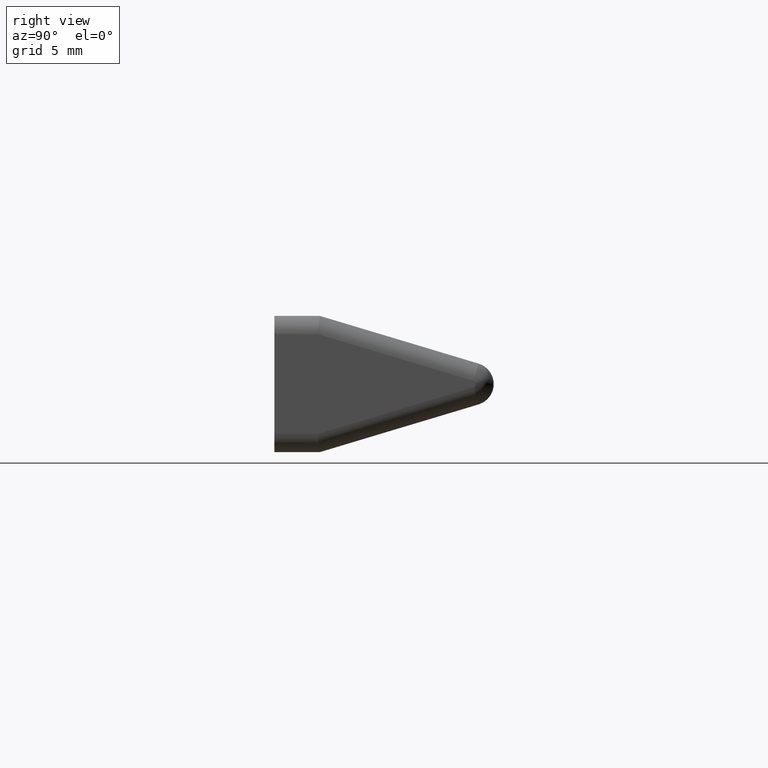
[diagram: clean part render]
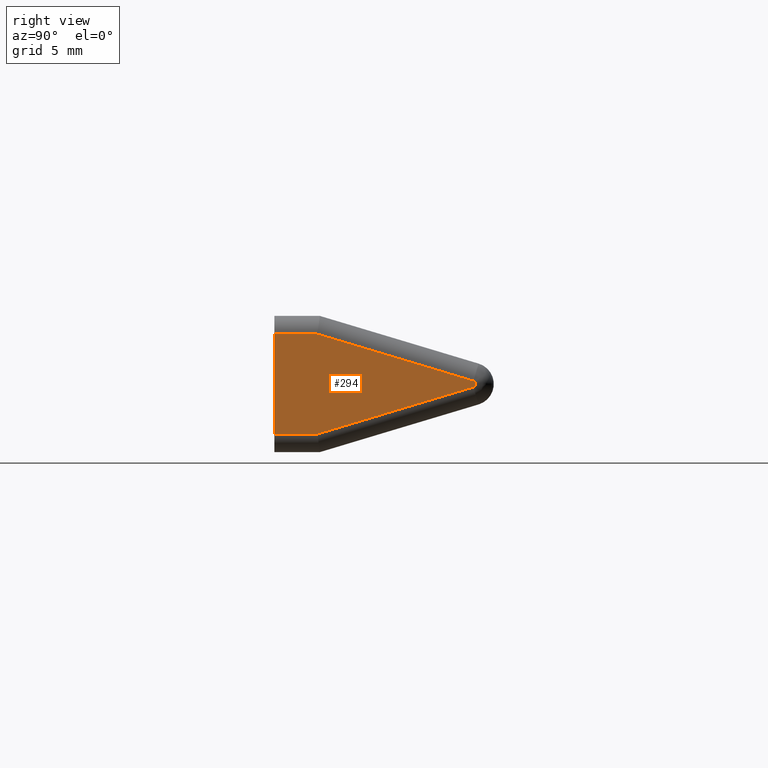
[diagram: same view with one face highlighted and labeled with its STEP entity id]
A machine part, right view. The second image highlights one B-rep face of the part: STEP entity #294.
In plain terms, the highlighted planar face has unit normal (1, 0, 0).
Its self-contained STEP definition (entity closure, byte-faithful):
#21=PLANE('',#349);
#41=FACE_OUTER_BOUND('',#59,.T.);
#59=EDGE_LOOP('',(#262,#263,#264,#265,#266,#267));
#74=CIRCLE('',#341,0.139999999999999);
#90=LINE('',#506,#114);
#92=LINE('',#514,#116);
#93=LINE('',#535,#117);
#94=LINE('',#538,#118);
#99=LINE('',#549,#123);
#114=VECTOR('',#402,10.);
#116=VECTOR('',#410,10.);
#117=VECTOR('',#419,10.);
#118=VECTOR('',#422,10.);
#123=VECTOR('',#437,10.);
#140=VERTEX_POINT('',#503);
#141=VERTEX_POINT('',#505);
#143=VERTEX_POINT('',#511);
#144=VERTEX_POINT('',#513);
#145=VERTEX_POINT('',#531);
#146=VERTEX_POINT('',#537);
#172=EDGE_CURVE('',#140,#141,#90,.T.);
#176=EDGE_CURVE('',#143,#144,#92,.T.);
#179=EDGE_CURVE('',#145,#143,#74,.T.);
#180=EDGE_CURVE('',#141,#145,#93,.T.);
#181=EDGE_CURVE('',#144,#146,#94,.T.);
#187=EDGE_CURVE('',#140,#146,#99,.T.);
#262=ORIENTED_EDGE('',*,*,#172,.F.);
#263=ORIENTED_EDGE('',*,*,#187,.T.);
#264=ORIENTED_EDGE('',*,*,#181,.F.);
#265=ORIENTED_EDGE('',*,*,#176,.F.);
#266=ORIENTED_EDGE('',*,*,#179,.F.);
#267=ORIENTED_EDGE('',*,*,#180,.F.);
#294=ADVANCED_FACE('',(#41),#21,.T.);
#341=AXIS2_PLACEMENT_3D('',#533,#415,#416);
#349=AXIS2_PLACEMENT_3D('',#550,#438,#439);
#402=DIRECTION('',(0.,1.,0.));
#410=DIRECTION('',(0.,-0.95772646284057,-0.287680417086199));
#415=DIRECTION('center_axis',(-1.,0.,0.));
#416=DIRECTION('ref_axis',(0.,1.,6.6436218228899E-16));
#419=DIRECTION('',(0.,0.95772646284057,-0.287680417086199));
#422=DIRECTION('',(0.,-1.,0.));
#437=DIRECTION('',(0.,0.,-1.));
#438=DIRECTION('center_axis',(1.,0.,0.));
#439=DIRECTION('ref_axis',(0.,0.,-1.));
#503=CARTESIAN_POINT('',(15.08,0.,2.2));
#505=CARTESIAN_POINT('',(15.08,1.89244305931532,2.2));
#506=CARTESIAN_POINT('',(15.08,3.42247130991928,2.2));
#511=CARTESIAN_POINT('',(15.08,8.7701604980692,-0.134081704797678));
#513=CARTESIAN_POINT('',(15.08,1.89244305931532,-2.2));
#514=CARTESIAN_POINT('',(15.08,3.48870954146421,-1.72051590388));
#531=CARTESIAN_POINT('',(15.08,8.7701604980692,0.134081704797679));
#533=CARTESIAN_POINT('Origin',(15.08,8.72988523967713,0.));
#535=CARTESIAN_POINT('',(15.08,6.98386195733329,0.670647341415071));
#537=CARTESIAN_POINT('',(15.08,0.,-2.2));
#538=CARTESIAN_POINT('',(15.08,2.41747130991928,-2.2));
#549=CARTESIAN_POINT('',(15.08,0.,3.));
#550=CARTESIAN_POINT('Origin',(15.08,4.83494261983857,0.));